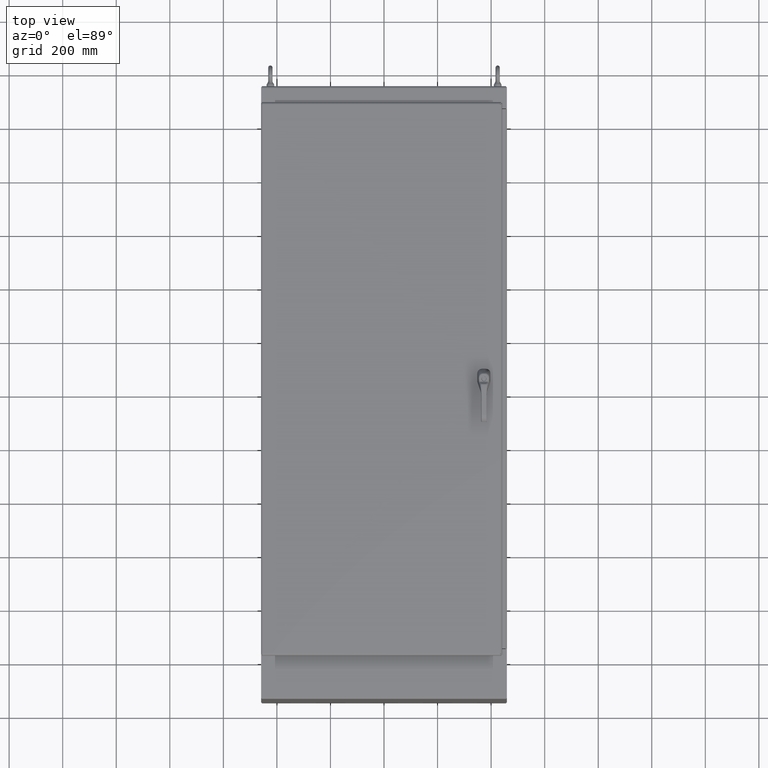
[diagram: clean part render]
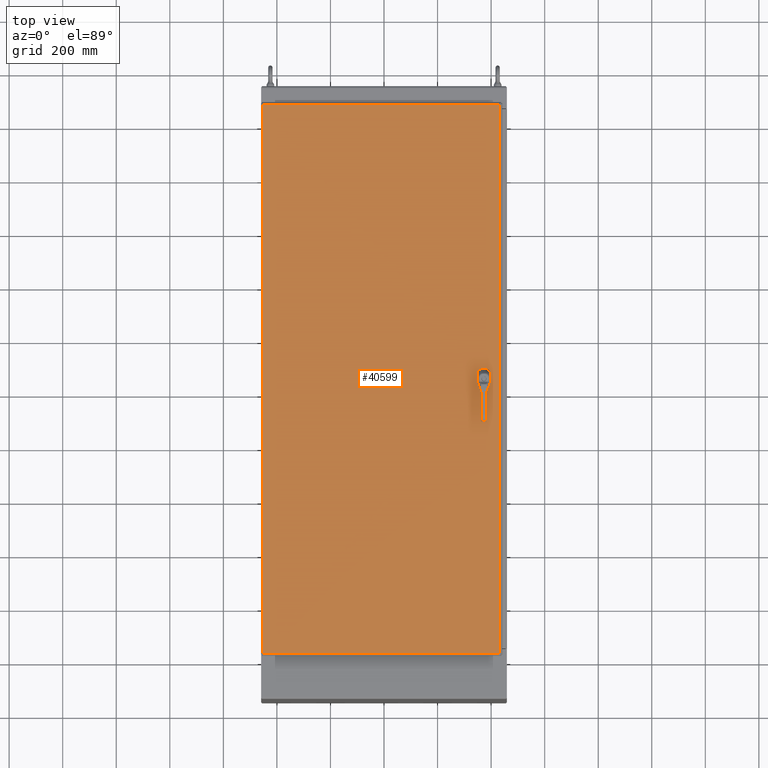
[diagram: same view with one face highlighted and labeled with its STEP entity id]
A machine part, top view. The second image highlights one B-rep face of the part: STEP entity #40599.
In plain terms, the highlighted planar face has unit normal (-0, 0, 1).
Its self-contained STEP definition (entity closure, byte-faithful):
#1873=FACE_BOUND('',#8273,.T.);
#1874=FACE_BOUND('',#8274,.T.);
#1875=FACE_BOUND('',#8275,.T.);
#1876=FACE_BOUND('',#8276,.T.);
#2114=CIRCLE('',#44137,0.1405);
#2116=CIRCLE('',#44140,0.1405);
#2118=CIRCLE('',#44143,0.1405);
#2120=CIRCLE('',#44146,0.453);
#2122=CIRCLE('',#44150,0.453);
#2124=CIRCLE('',#44154,0.453);
#2126=CIRCLE('',#44158,0.453);
#5734=FACE_OUTER_BOUND('',#8272,.T.);
#8272=EDGE_LOOP('',(#27721,#27722,#27723,#27724));
#8273=EDGE_LOOP('',(#27725));
#8274=EDGE_LOOP('',(#27726));
#8275=EDGE_LOOP('',(#27727));
#8276=EDGE_LOOP('',(#27728,#27729,#27730,#27731,#27732,#27733,#27734,#27735));
#11129=LINE('',#62739,#14084);
#11133=LINE('',#62751,#14088);
#11137=LINE('',#62763,#14092);
#11141=LINE('',#62774,#14096);
#11149=LINE('',#62956,#14104);
#11156=LINE('',#63159,#14111);
#11157=LINE('',#63191,#14112);
#11169=LINE('',#63269,#14124);
#14084=VECTOR('',#49877,0.393700787401575);
#14088=VECTOR('',#49889,0.393700787401575);
#14092=VECTOR('',#49901,0.393700787401575);
#14096=VECTOR('',#49913,0.393700787401575);
#14104=VECTOR('',#49929,0.393700787401575);
#14111=VECTOR('',#49944,0.393700787401575);
#14112=VECTOR('',#49947,0.393700787401575);
#14124=VECTOR('',#49975,0.393700787401575);
#16911=VERTEX_POINT('',#62711);
#16913=VERTEX_POINT('',#62717);
#16915=VERTEX_POINT('',#62723);
#16917=VERTEX_POINT('',#62729);
#16918=VERTEX_POINT('',#62730);
#16921=VERTEX_POINT('',#62738);
#16923=VERTEX_POINT('',#62744);
#16925=VERTEX_POINT('',#62750);
#16927=VERTEX_POINT('',#62756);
#16929=VERTEX_POINT('',#62762);
#16931=VERTEX_POINT('',#62768);
#16935=VERTEX_POINT('',#62853);
#16938=VERTEX_POINT('',#62934);
#16942=VERTEX_POINT('',#63069);
#16948=VERTEX_POINT('',#63158);
#20888=EDGE_CURVE('',#16911,#16911,#2114,.T.);
#20891=EDGE_CURVE('',#16913,#16913,#2116,.T.);
#20894=EDGE_CURVE('',#16915,#16915,#2118,.T.);
#20897=EDGE_CURVE('',#16917,#16918,#2120,.T.);
#20901=EDGE_CURVE('',#16921,#16917,#11129,.T.);
#20904=EDGE_CURVE('',#16923,#16921,#2122,.T.);
#20907=EDGE_CURVE('',#16925,#16923,#11133,.T.);
#20910=EDGE_CURVE('',#16927,#16925,#2124,.T.);
#20913=EDGE_CURVE('',#16929,#16927,#11137,.T.);
#20916=EDGE_CURVE('',#16931,#16929,#2126,.T.);
#20919=EDGE_CURVE('',#16918,#16931,#11141,.T.);
#20936=EDGE_CURVE('',#16935,#16938,#11149,.T.);
#20954=EDGE_CURVE('',#16948,#16942,#11156,.T.);
#20956=EDGE_CURVE('',#16942,#16935,#11157,.T.);
#20969=EDGE_CURVE('',#16938,#16948,#11169,.T.);
#27721=ORIENTED_EDGE('',*,*,#20956,.T.);
#27722=ORIENTED_EDGE('',*,*,#20936,.T.);
#27723=ORIENTED_EDGE('',*,*,#20969,.T.);
#27724=ORIENTED_EDGE('',*,*,#20954,.T.);
#27725=ORIENTED_EDGE('',*,*,#20888,.T.);
#27726=ORIENTED_EDGE('',*,*,#20891,.T.);
#27727=ORIENTED_EDGE('',*,*,#20894,.T.);
#27728=ORIENTED_EDGE('',*,*,#20897,.T.);
#27729=ORIENTED_EDGE('',*,*,#20919,.T.);
#27730=ORIENTED_EDGE('',*,*,#20916,.T.);
#27731=ORIENTED_EDGE('',*,*,#20913,.T.);
#27732=ORIENTED_EDGE('',*,*,#20910,.T.);
#27733=ORIENTED_EDGE('',*,*,#20907,.T.);
#27734=ORIENTED_EDGE('',*,*,#20904,.T.);
#27735=ORIENTED_EDGE('',*,*,#20901,.T.);
#38909=PLANE('',#44184);
#40599=ADVANCED_FACE('',(#5734,#1873,#1874,#1875,#1876),#38909,.T.);
#44137=AXIS2_PLACEMENT_3D('',#62712,#49848,#49849);
#44140=AXIS2_PLACEMENT_3D('',#62718,#49855,#49856);
#44143=AXIS2_PLACEMENT_3D('',#62724,#49862,#49863);
#44146=AXIS2_PLACEMENT_3D('',#62731,#49869,#49870);
#44150=AXIS2_PLACEMENT_3D('',#62745,#49882,#49883);
#44154=AXIS2_PLACEMENT_3D('',#62757,#49894,#49895);
#44158=AXIS2_PLACEMENT_3D('',#62769,#49906,#49907);
#44184=AXIS2_PLACEMENT_3D('',#63352,#49998,#49999);
#49848=DIRECTION('center_axis',(0.,0.,-1.));
#49849=DIRECTION('ref_axis',(-1.,0.,0.));
#49855=DIRECTION('center_axis',(0.,0.,-1.));
#49856=DIRECTION('ref_axis',(-1.,0.,0.));
#49862=DIRECTION('center_axis',(0.,0.,-1.));
#49863=DIRECTION('ref_axis',(-1.,0.,0.));
#49869=DIRECTION('center_axis',(0.,0.,-1.));
#49870=DIRECTION('ref_axis',(-0.883002207505519,-0.469368833158296,0.));
#49877=DIRECTION('',(-1.,0.,0.));
#49882=DIRECTION('center_axis',(0.,0.,-1.));
#49883=DIRECTION('ref_axis',(0.469368833158296,-0.883002207505519,0.));
#49889=DIRECTION('',(0.,-1.,0.));
#49894=DIRECTION('center_axis',(0.,0.,-1.));
#49895=DIRECTION('ref_axis',(0.883002207505519,0.469368833158297,0.));
#49901=DIRECTION('',(1.,-2.055720481263E-16,0.));
#49906=DIRECTION('center_axis',(0.,0.,-1.));
#49907=DIRECTION('ref_axis',(-0.469368833158297,0.883002207505518,0.));
#49913=DIRECTION('',(-4.11144096252601E-16,1.,0.));
#49929=DIRECTION('',(1.,0.,0.));
#49944=DIRECTION('',(-1.,-4.78415040491206E-16,0.));
#49947=DIRECTION('',(-6.93570442811114E-17,-1.,0.));
#49975=DIRECTION('',(-6.93570442811114E-17,1.,0.));
#49998=DIRECTION('center_axis',(0.,0.,1.));
#49999=DIRECTION('ref_axis',(1.,0.,0.));
#62711=CARTESIAN_POINT('',(15.17175,-1.37699999999999,0.104));
#62712=CARTESIAN_POINT('Origin',(15.03125,-1.37699999999999,0.104));
#62717=CARTESIAN_POINT('',(15.17175,0.885000000000006,0.104));
#62718=CARTESIAN_POINT('Origin',(15.03125,0.885000000000006,0.104));
#62723=CARTESIAN_POINT('',(15.17175,-0.884999999999994,0.104));
#62724=CARTESIAN_POINT('Origin',(15.03125,-0.884999999999994,0.104));
#62729=CARTESIAN_POINT('',(14.8186259185793,-0.399999999999994,0.104));
#62730=CARTESIAN_POINT('',(14.63125,-0.212624081420703,0.104));
#62731=CARTESIAN_POINT('Origin',(15.03125,5.59482469102441E-15,0.104));
#62738=CARTESIAN_POINT('',(15.2438740814207,-0.399999999999994,0.104));
#62739=CARTESIAN_POINT('',(7.62193704071035,-0.399999999999994,0.104));
#62744=CARTESIAN_POINT('',(15.43125,-0.212624081420703,0.104));
#62745=CARTESIAN_POINT('Origin',(15.03125,5.59482469102441E-15,0.104));
#62750=CARTESIAN_POINT('',(15.43125,0.212624081420714,0.104));
#62751=CARTESIAN_POINT('',(15.43125,0.106312040710353,0.104));
#62756=CARTESIAN_POINT('',(15.2438740814207,0.400000000000005,0.104));
#62757=CARTESIAN_POINT('Origin',(15.03125,5.59482469102441E-15,0.104));
#62762=CARTESIAN_POINT('',(14.8186259185793,0.400000000000005,0.104));
#62763=CARTESIAN_POINT('',(7.40931295928965,0.400000000000007,0.104));
#62768=CARTESIAN_POINT('',(14.63125,0.212624081420714,0.104));
#62769=CARTESIAN_POINT('Origin',(15.03125,5.59482469102441E-15,0.104));
#62774=CARTESIAN_POINT('',(14.63125,-0.106312040710352,0.104));
#62853=CARTESIAN_POINT('',(-17.474125,-40.3335,0.104));
#62934=CARTESIAN_POINT('',(17.36475,-40.3335,0.104));
#62956=CARTESIAN_POINT('',(-8.859375,-40.3335,0.104));
#63069=CARTESIAN_POINT('',(-17.474125,40.3335,0.104));
#63158=CARTESIAN_POINT('',(17.36475,40.3335,0.104));
#63159=CARTESIAN_POINT('',(8.68237499999999,40.3335,0.104));
#63191=CARTESIAN_POINT('',(-17.474125,20.16675,0.104));
#63269=CARTESIAN_POINT('',(17.36475,-20.16675,0.104));
#63352=CARTESIAN_POINT('Origin',(2.79741234551221E-15,-8.0843502334427E-15,
0.104));